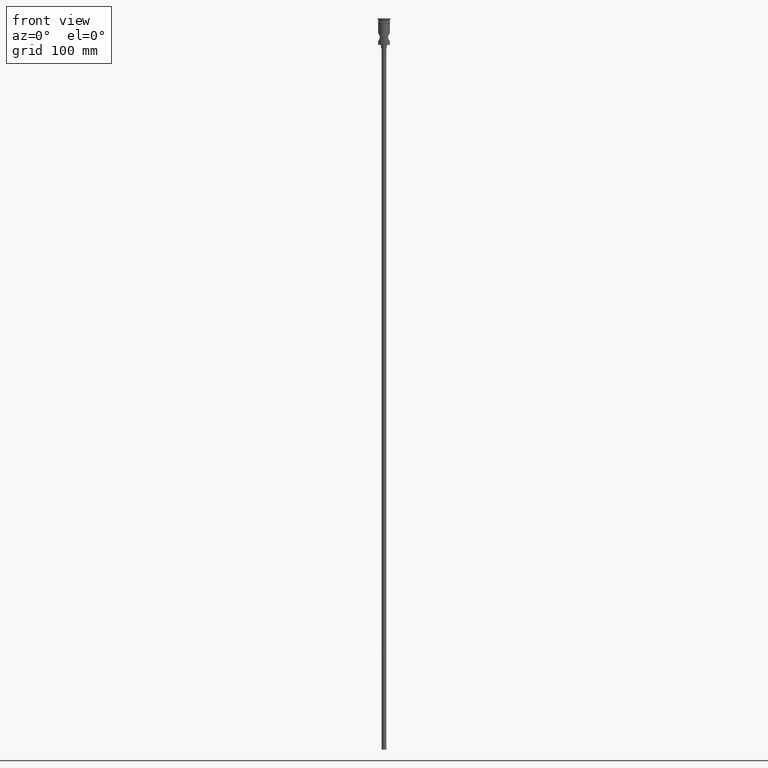
[diagram: clean part render]
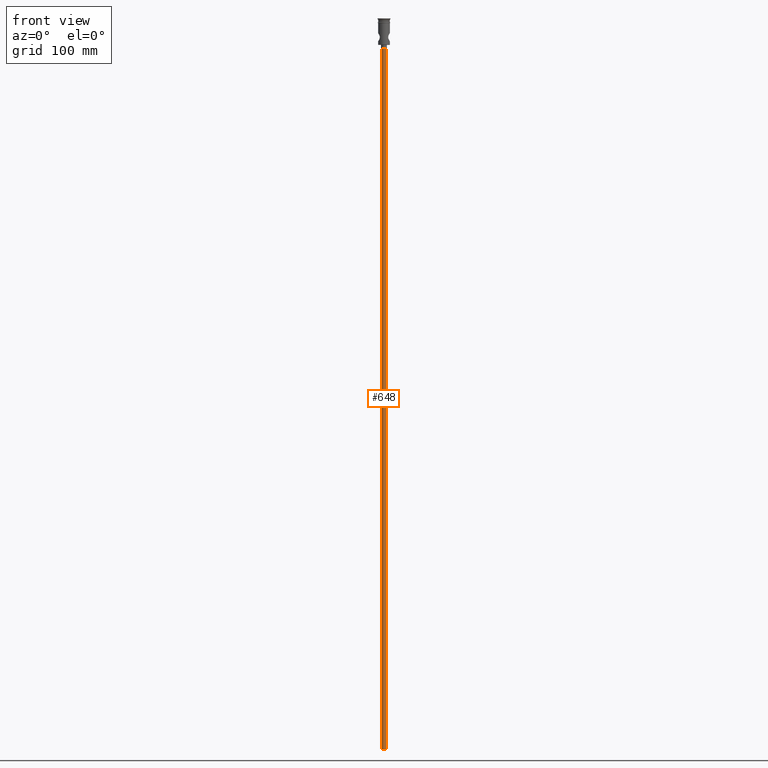
[diagram: same view with one face highlighted and labeled with its STEP entity id]
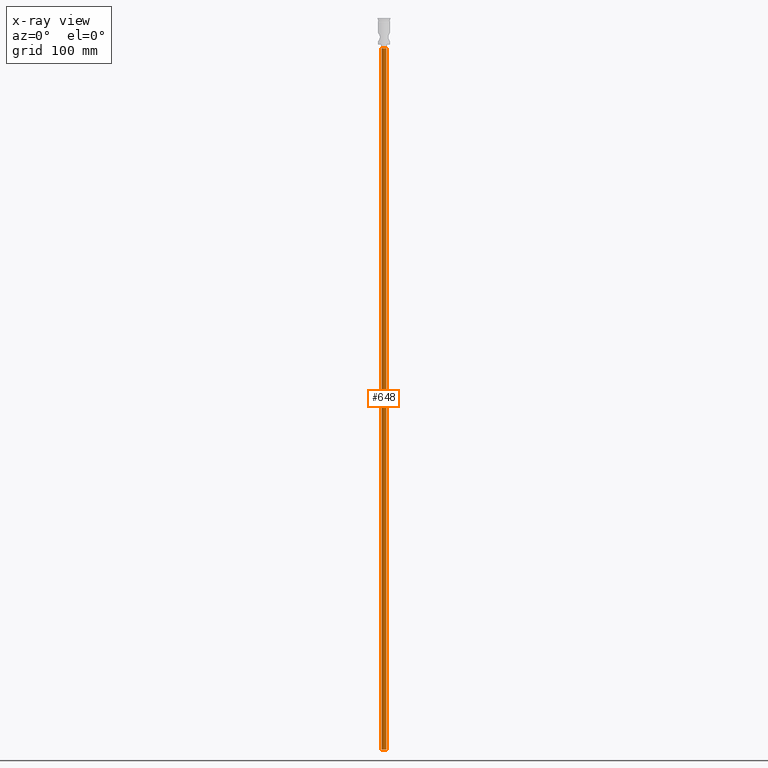
[diagram: x-ray of the same camera — body ghosted, the highlighted face saturated]
A machine part, front view. The second image highlights one B-rep face of the part: STEP entity #648.
The next image is the same camera in x-ray: the body ghosted, the highlighted face saturated — about 0% of this face is hidden behind the body in this view.
In plain terms, the highlighted cylindrical surface (edge-blend (fillet) strip) has radius 2 mm, axis along (-0, -0, 1).
Its self-contained STEP definition (entity closure, byte-faithful):
#48 = EDGE_CURVE ( 'NONE', #818, #1088, #990, .T. ) ;
#109 = AXIS2_PLACEMENT_3D ( 'NONE', #963, #622, #1201 ) ;
#110 = AXIS2_PLACEMENT_3D ( 'NONE', #577, #1022, #125 ) ;
#121 = CYLINDRICAL_SURFACE ( 'NONE', #110, 2.000000000000000000 ) ;
#125 = DIRECTION ( 'NONE',  ( 1.000000000000000000, 0.000000000000000000, 0.000000000000000000 ) ) ;
#169 = LINE ( 'NONE', #1070, #281 ) ;
#171 = CARTESIAN_POINT ( 'NONE',  ( 0.000000000000000000, 0.000000000000000000, -622.4999999999998863 ) ) ;
#281 = VECTOR ( 'NONE', #516, 1000.000000000000000 ) ;
#315 = VERTEX_POINT ( 'NONE', #1233 ) ;
#357 = CARTESIAN_POINT ( 'NONE',  ( 2.000000000000000000, 0.000000000000000000, -622.4999999999998863 ) ) ;
#427 = EDGE_CURVE ( 'NONE', #828, #1088, #169, .T. ) ;
#495 = DIRECTION ( 'NONE',  ( -1.000000000000000000, 0.000000000000000000, 0.000000000000000000 ) ) ;
#505 = CARTESIAN_POINT ( 'NONE',  ( -2.000000000000000000, 2.449293598294706414E-16, -25.50000000000000000 ) ) ;
#516 = DIRECTION ( 'NONE',  ( -0.000000000000000000, -0.000000000000000000, 1.000000000000000000 ) ) ;
#577 = CARTESIAN_POINT ( 'NONE',  ( 0.000000000000000000, 0.000000000000000000, -622.4999999999998863 ) ) ;
#615 = ORIENTED_EDGE ( 'NONE', *, *, #1314, .T. ) ;
#622 = DIRECTION ( 'NONE',  ( 0.000000000000000000, 0.000000000000000000, -1.000000000000000000 ) ) ;
#648 = ADVANCED_FACE ( 'NONE', ( #899 ), #121, .T. ) ;
#818 = VERTEX_POINT ( 'NONE', #1432 ) ;
#828 = VERTEX_POINT ( 'NONE', #1326 ) ;
#899 = FACE_OUTER_BOUND ( 'NONE', #1425, .T. ) ;
#904 = ORIENTED_EDGE ( 'NONE', *, *, #427, .F. ) ;
#918 = LINE ( 'NONE', #357, #1036 ) ;
#963 = CARTESIAN_POINT ( 'NONE',  ( 0.000000000000000000, 0.000000000000000000, -25.50000000000000000 ) ) ;
#990 = CIRCLE ( 'NONE', #109, 2.000000000000000000 ) ;
#1004 = EDGE_CURVE ( 'NONE', #315, #828, #1456, .T. ) ;
#1019 = ORIENTED_EDGE ( 'NONE', *, *, #48, .T. ) ;
#1022 = DIRECTION ( 'NONE',  ( -0.000000000000000000, -0.000000000000000000, 1.000000000000000000 ) ) ;
#1036 = VECTOR ( 'NONE', #1351, 1000.000000000000000 ) ;
#1070 = CARTESIAN_POINT ( 'NONE',  ( -2.000000000000000000, 2.449293598294706414E-16, -622.4999999999998863 ) ) ;
#1088 = VERTEX_POINT ( 'NONE', #505 ) ;
#1201 = DIRECTION ( 'NONE',  ( -1.000000000000000000, 0.000000000000000000, 0.000000000000000000 ) ) ;
#1233 = CARTESIAN_POINT ( 'NONE',  ( 2.000000000000000000, 0.000000000000000000, -622.4999999999998863 ) ) ;
#1314 = EDGE_CURVE ( 'NONE', #315, #818, #918, .T. ) ;
#1326 = CARTESIAN_POINT ( 'NONE',  ( -2.000000000000000000, 2.449293598294706414E-16, -622.4999999999998863 ) ) ;
#1351 = DIRECTION ( 'NONE',  ( -0.000000000000000000, -0.000000000000000000, 1.000000000000000000 ) ) ;
#1381 = DIRECTION ( 'NONE',  ( 0.000000000000000000, 0.000000000000000000, -1.000000000000000000 ) ) ;
#1413 = AXIS2_PLACEMENT_3D ( 'NONE', #171, #1381, #495 ) ;
#1425 = EDGE_LOOP ( 'NONE', ( #904, #1434, #615, #1019 ) ) ;
#1432 = CARTESIAN_POINT ( 'NONE',  ( 2.000000000000000000, 0.000000000000000000, -25.50000000000000000 ) ) ;
#1434 = ORIENTED_EDGE ( 'NONE', *, *, #1004, .F. ) ;
#1456 = CIRCLE ( 'NONE', #1413, 2.000000000000000000 ) ;